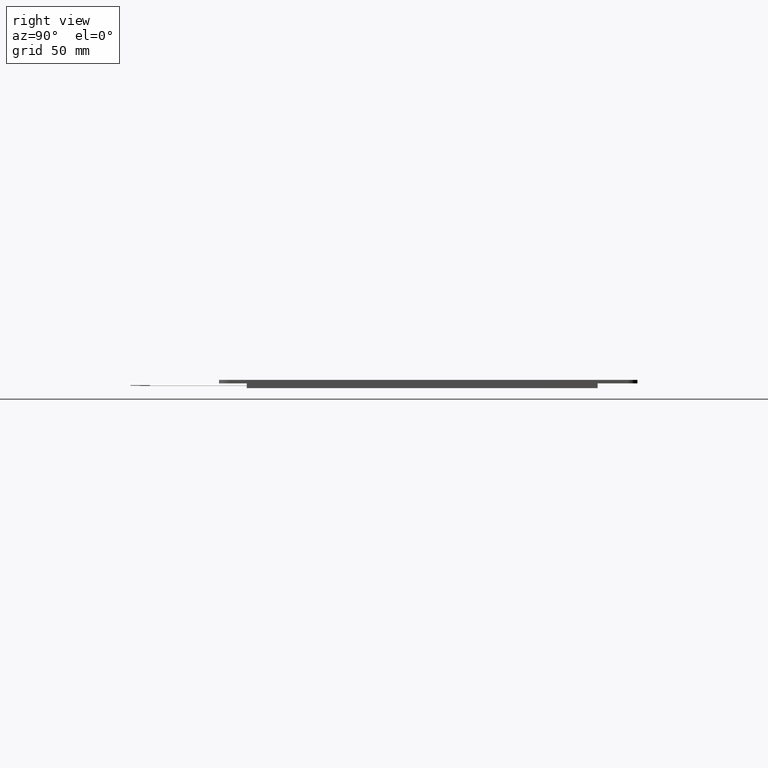
[diagram: clean part render]
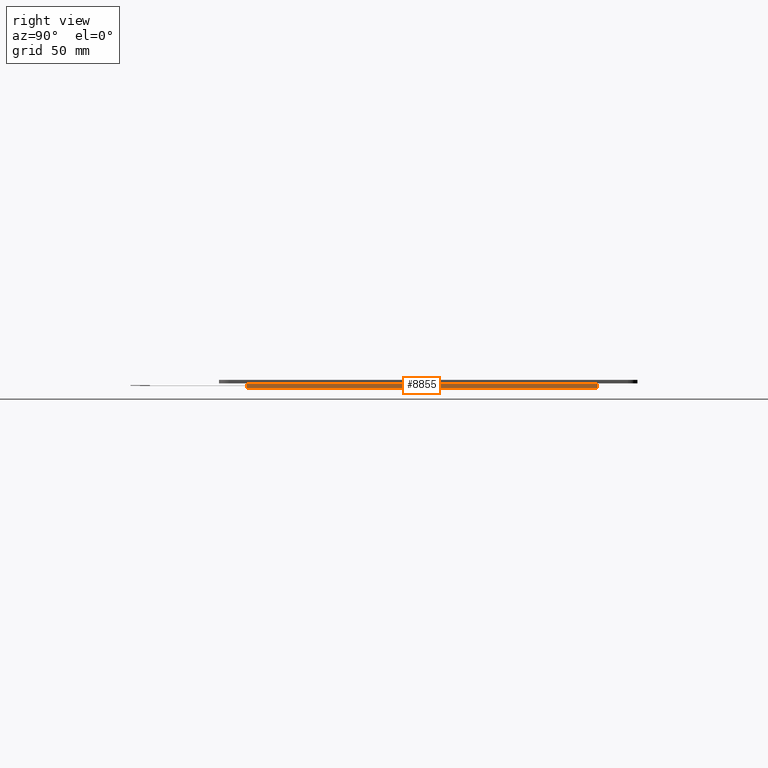
[diagram: same view with one face highlighted and labeled with its STEP entity id]
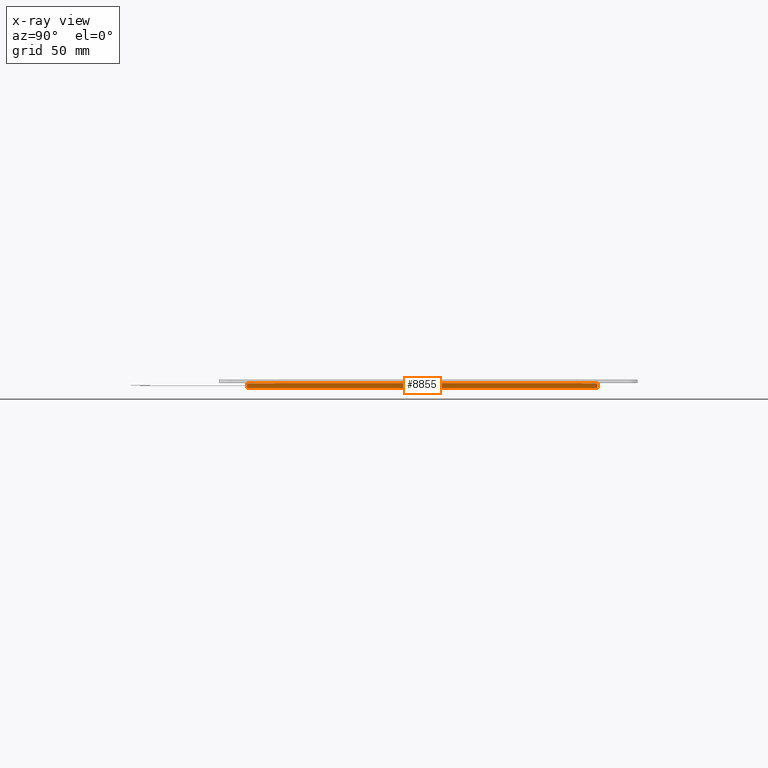
[diagram: x-ray of the same camera — body ghosted, the highlighted face saturated]
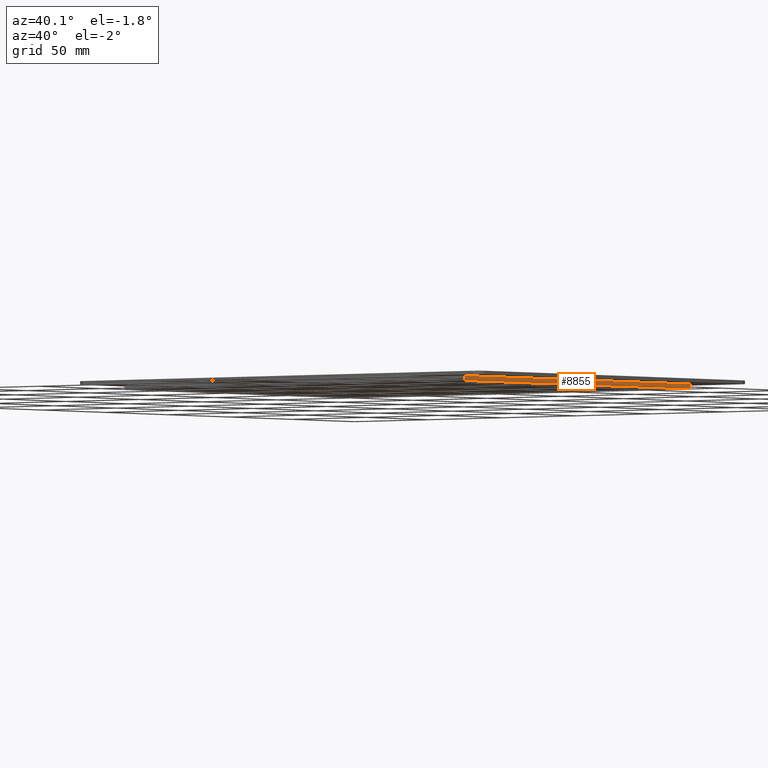
[diagram: same view with one face highlighted and labeled with its STEP entity id]
A machine part, right view. The second image highlights one B-rep face of the part: STEP entity #8855.
The next image is the same camera in x-ray: the body ghosted, the highlighted face saturated — about 0% of this face is hidden behind the body in this view.
A second angle (auxiliary view) of the same face is appended — the face is thin or edge-on in the first view.
In plain terms, the highlighted planar face has unit normal (1, 0, 0).
Its self-contained STEP definition (entity closure, byte-faithful):
#488=FACE_OUTER_BOUND('',#917,.T.);
#917=EDGE_LOOP('',(#8001,#8002,#8003,#8004));
#954=LINE('',#11521,#2199);
#2161=LINE('',#13943,#3406);
#2162=LINE('',#13946,#3407);
#2163=LINE('',#13947,#3408);
#2199=VECTOR('',#9395,10.);
#3406=VECTOR('',#11422,10.);
#3407=VECTOR('',#11425,10.);
#3408=VECTOR('',#11426,10.);
#3440=VERTEX_POINT('',#11518);
#3441=VERTEX_POINT('',#11520);
#4246=VERTEX_POINT('',#13941);
#4247=VERTEX_POINT('',#13945);
#4290=EDGE_CURVE('',#3440,#3441,#954,.T.);
#5499=EDGE_CURVE('',#3440,#4246,#2161,.T.);
#5500=EDGE_CURVE('',#4247,#4246,#2162,.T.);
#5501=EDGE_CURVE('',#3441,#4247,#2163,.T.);
#8001=ORIENTED_EDGE('',*,*,#4290,.F.);
#8002=ORIENTED_EDGE('',*,*,#5499,.T.);
#8003=ORIENTED_EDGE('',*,*,#5500,.F.);
#8004=ORIENTED_EDGE('',*,*,#5501,.F.);
#8430=PLANE('',#9312);
#8855=ADVANCED_FACE('',(#488),#8430,.T.);
#9312=AXIS2_PLACEMENT_3D('',#13944,#11423,#11424);
#9395=DIRECTION('',(-9.80870700938846E-17,1.,0.));
#11422=DIRECTION('',(0.,0.,-1.));
#11423=DIRECTION('center_axis',(1.,9.80870700938846E-17,0.));
#11424=DIRECTION('ref_axis',(9.80870700938846E-17,-1.,0.));
#11425=DIRECTION('',(9.80870700938846E-17,-1.,0.));
#11426=DIRECTION('',(0.,0.,-1.));
#11518=CARTESIAN_POINT('',(113.8,-93.7999999999999,0.));
#11520=CARTESIAN_POINT('',(113.8,87.3000000000001,0.));
#11521=CARTESIAN_POINT('',(113.8,-93.7999999999999,0.));
#13941=CARTESIAN_POINT('',(113.8,-93.7999999999999,-2.5));
#13943=CARTESIAN_POINT('',(113.8,-93.7999999999999,0.));
#13944=CARTESIAN_POINT('Origin',(113.8,87.3000000000001,0.));
#13945=CARTESIAN_POINT('',(113.8,87.3000000000001,-2.5));
#13946=CARTESIAN_POINT('',(113.8,-93.7999999999999,-2.5));
#13947=CARTESIAN_POINT('',(113.8,87.3000000000001,0.));